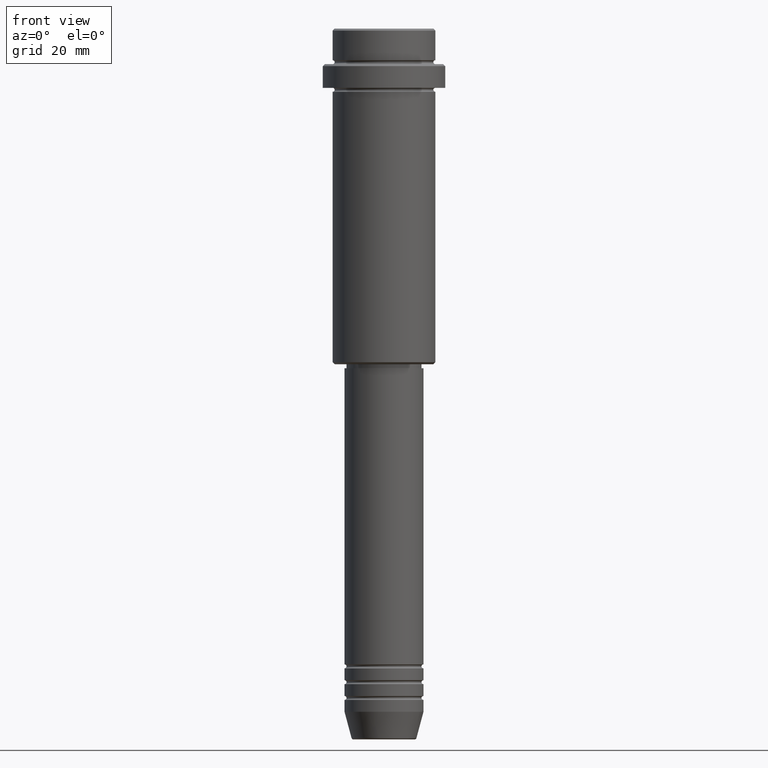
[diagram: clean part render]
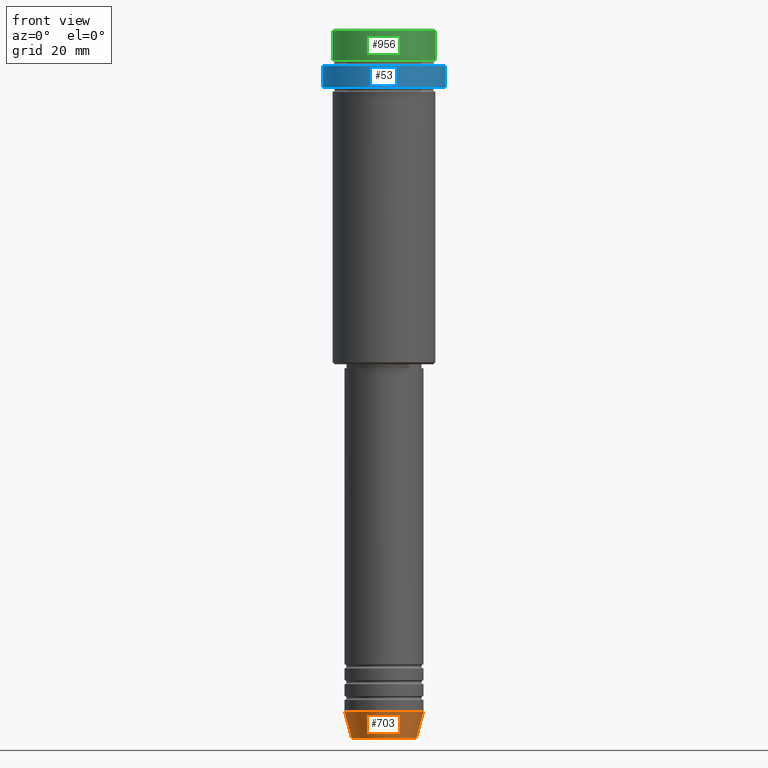
[diagram: same view with three faces highlighted in distinct colors, each labeled with its STEP entity id]
A machine part, front view with three faces highlighted in distinct colors.
Their STEP definitions:

[orange] entity #703 — the highlighted conical surface has half-angle 15 deg.
#15 = DIRECTION ( 'NONE',  ( 1.000000000000000000, 0.000000000000000000, 0.000000000000000000 ) ) ;
#54 = DIRECTION ( 'NONE',  ( 1.000000000000000000, 0.000000000000000000, 0.000000000000000000 ) ) ;
#121 = CARTESIAN_POINT ( 'NONE',  ( 0.000000000000000000, 0.000000000000000000, -179.6294095225512422 ) ) ;
#128 = DIRECTION ( 'NONE',  ( -0.2588190451025214611, 3.169619151431774186E-17, 0.9659258262890679791 ) ) ;
#146 = VERTEX_POINT ( 'NONE', #865 ) ;
#170 = CARTESIAN_POINT ( 'NONE',  ( 8.223655072137189492, 0.000000000000000000, -179.6294095225512422 ) ) ;
#176 = VECTOR ( 'NONE', #128, 1000.000000000000114 ) ;
#190 = LINE ( 'NONE', #313, #826 ) ;
#229 = AXIS2_PLACEMENT_3D ( 'NONE', #121, #809, #15 ) ;
#265 = CARTESIAN_POINT ( 'NONE',  ( -8.223655072137189492, 1.115877042642911856E-15, -179.6294095225512422 ) ) ;
#313 = CARTESIAN_POINT ( 'NONE',  ( 10.00000000000000000, 0.000000000000000000, -173.0000000000000000 ) ) ;
#320 = CARTESIAN_POINT ( 'NONE',  ( -10.00000000000000000, 1.224646799147353256E-15, -173.0000000000000000 ) ) ;
#347 = VERTEX_POINT ( 'NONE', #170 ) ;
#466 = VERTEX_POINT ( 'NONE', #1142 ) ;
#468 = DIRECTION ( 'NONE',  ( -0.000000000000000000, -0.000000000000000000, 1.000000000000000000 ) ) ;
#547 = EDGE_CURVE ( 'NONE', #649, #146, #908, .T. ) ;
#571 = CONICAL_SURFACE ( 'NONE', #1390, 10.00000000000000000, 0.2617993877991502405 ) ;
#597 = DIRECTION ( 'NONE',  ( -0.000000000000000000, -0.000000000000000000, 1.000000000000000000 ) ) ;
#614 = CIRCLE ( 'NONE', #799, 10.00000000000000000 ) ;
#627 = DIRECTION ( 'NONE',  ( 0.2588190451025214611, 0.000000000000000000, 0.9659258262890679791 ) ) ;
#649 = VERTEX_POINT ( 'NONE', #265 ) ;
#703 = ADVANCED_FACE ( 'NONE', ( #717 ), #571, .T. ) ;
#717 = FACE_OUTER_BOUND ( 'NONE', #1186, .T. ) ;
#799 = AXIS2_PLACEMENT_3D ( 'NONE', #1017, #468, #1354 ) ;
#809 = DIRECTION ( 'NONE',  ( -0.000000000000000000, -0.000000000000000000, 1.000000000000000000 ) ) ;
#814 = ORIENTED_EDGE ( 'NONE', *, *, #1311, .T. ) ;
#826 = VECTOR ( 'NONE', #627, 1000.000000000000114 ) ;
#853 = CIRCLE ( 'NONE', #229, 8.223655072137189492 ) ;
#865 = CARTESIAN_POINT ( 'NONE',  ( -10.00000000000000000, 1.224646799147353256E-15, -173.0000000000000000 ) ) ;
#908 = LINE ( 'NONE', #320, #176 ) ;
#920 = EDGE_CURVE ( 'NONE', #347, #466, #190, .T. ) ;
#1017 = CARTESIAN_POINT ( 'NONE',  ( 0.000000000000000000, 0.000000000000000000, -173.0000000000000000 ) ) ;
#1020 = EDGE_CURVE ( 'NONE', #146, #466, #614, .T. ) ;
#1102 = ORIENTED_EDGE ( 'NONE', *, *, #547, .F. ) ;
#1133 = CARTESIAN_POINT ( 'NONE',  ( 0.000000000000000000, 0.000000000000000000, -173.0000000000000000 ) ) ;
#1142 = CARTESIAN_POINT ( 'NONE',  ( 10.00000000000000000, 0.000000000000000000, -173.0000000000000000 ) ) ;
#1186 = EDGE_LOOP ( 'NONE', ( #1102, #814, #1207, #1357 ) ) ;
#1207 = ORIENTED_EDGE ( 'NONE', *, *, #920, .T. ) ;
#1311 = EDGE_CURVE ( 'NONE', #649, #347, #853, .T. ) ;
#1354 = DIRECTION ( 'NONE',  ( 1.000000000000000000, 0.000000000000000000, 0.000000000000000000 ) ) ;
#1357 = ORIENTED_EDGE ( 'NONE', *, *, #1020, .F. ) ;
#1390 = AXIS2_PLACEMENT_3D ( 'NONE', #1133, #597, #54 ) ;

[blue] entity #53 — the highlighted cylindrical surface (partial cylindrical patch) has radius 15.5 mm, axis along (-0, -0, 1).
#35 = VERTEX_POINT ( 'NONE', #113 ) ;
#53 = ADVANCED_FACE ( 'NONE', ( #1241 ), #1316, .T. ) ;
#62 = LINE ( 'NONE', #1039, #1413 ) ;
#88 = CARTESIAN_POINT ( 'NONE',  ( 15.50000000000000000, 0.000000000000000000, 0.000000000000000000 ) ) ;
#105 = AXIS2_PLACEMENT_3D ( 'NONE', #1120, #765, #992 ) ;
#113 = CARTESIAN_POINT ( 'NONE',  ( 15.50000000000000000, 0.000000000000000000, -15.00000000000000000 ) ) ;
#141 = CARTESIAN_POINT ( 'NONE',  ( 0.000000000000000000, 0.000000000000000000, 0.000000000000000000 ) ) ;
#208 = DIRECTION ( 'NONE',  ( 1.000000000000000000, 0.000000000000000000, 0.000000000000000000 ) ) ;
#210 = EDGE_CURVE ( 'NONE', #1286, #1210, #1236, .T. ) ;
#216 = VERTEX_POINT ( 'NONE', #1292 ) ;
#244 = EDGE_CURVE ( 'NONE', #216, #35, #312, .T. ) ;
#264 = ORIENTED_EDGE ( 'NONE', *, *, #244, .T. ) ;
#275 = CARTESIAN_POINT ( 'NONE',  ( -15.50000000000000000, 1.898202538678397557E-15, -9.500000000000012434 ) ) ;
#299 = ORIENTED_EDGE ( 'NONE', *, *, #798, .T. ) ;
#307 = LINE ( 'NONE', #88, #1191 ) ;
#311 = DIRECTION ( 'NONE',  ( 0.000000000000000000, 0.000000000000000000, -1.000000000000000000 ) ) ;
#312 = CIRCLE ( 'NONE', #105, 15.50000000000000000 ) ;
#402 = EDGE_CURVE ( 'NONE', #216, #1210, #62, .T. ) ;
#418 = CARTESIAN_POINT ( 'NONE',  ( 0.000000000000000000, 0.000000000000000000, -9.500000000000012434 ) ) ;
#456 = AXIS2_PLACEMENT_3D ( 'NONE', #141, #669, #581 ) ;
#581 = DIRECTION ( 'NONE',  ( 1.000000000000000000, 0.000000000000000000, 0.000000000000000000 ) ) ;
#669 = DIRECTION ( 'NONE',  ( -0.000000000000000000, -0.000000000000000000, 1.000000000000000000 ) ) ;
#675 = EDGE_LOOP ( 'NONE', ( #1097, #264, #299, #1109 ) ) ;
#765 = DIRECTION ( 'NONE',  ( -0.000000000000000000, -0.000000000000000000, 1.000000000000000000 ) ) ;
#798 = EDGE_CURVE ( 'NONE', #35, #1286, #307, .T. ) ;
#992 = DIRECTION ( 'NONE',  ( 1.000000000000000000, 0.000000000000000000, 0.000000000000000000 ) ) ;
#1039 = CARTESIAN_POINT ( 'NONE',  ( -15.50000000000000000, 1.898202538678397557E-15, 0.000000000000000000 ) ) ;
#1047 = AXIS2_PLACEMENT_3D ( 'NONE', #418, #311, #208 ) ;
#1097 = ORIENTED_EDGE ( 'NONE', *, *, #402, .F. ) ;
#1109 = ORIENTED_EDGE ( 'NONE', *, *, #210, .T. ) ;
#1120 = CARTESIAN_POINT ( 'NONE',  ( 0.000000000000000000, 0.000000000000000000, -15.00000000000000000 ) ) ;
#1191 = VECTOR ( 'NONE', #1268, 1000.000000000000000 ) ;
#1210 = VERTEX_POINT ( 'NONE', #275 ) ;
#1236 = CIRCLE ( 'NONE', #1047, 15.50000000000000000 ) ;
#1241 = FACE_OUTER_BOUND ( 'NONE', #675, .T. ) ;
#1264 = DIRECTION ( 'NONE',  ( -0.000000000000000000, -0.000000000000000000, 1.000000000000000000 ) ) ;
#1268 = DIRECTION ( 'NONE',  ( -0.000000000000000000, -0.000000000000000000, 1.000000000000000000 ) ) ;
#1286 = VERTEX_POINT ( 'NONE', #1335 ) ;
#1292 = CARTESIAN_POINT ( 'NONE',  ( -15.50000000000000000, 1.898202538678397557E-15, -15.00000000000000000 ) ) ;
#1316 = CYLINDRICAL_SURFACE ( 'NONE', #456, 15.50000000000000000 ) ;
#1335 = CARTESIAN_POINT ( 'NONE',  ( 15.50000000000000000, 0.000000000000000000, -9.500000000000012434 ) ) ;
#1413 = VECTOR ( 'NONE', #1264, 1000.000000000000000 ) ;

[green] entity #956 — the highlighted cylindrical surface (partial cylindrical patch) has radius 13 mm, axis along (-0, -0, 1).
#14 = VECTOR ( 'NONE', #971, 1000.000000000000000 ) ;
#36 = EDGE_CURVE ( 'NONE', #477, #1194, #794, .T. ) ;
#135 = EDGE_CURVE ( 'NONE', #916, #1194, #217, .T. ) ;
#136 = DIRECTION ( 'NONE',  ( -0.000000000000000000, -0.000000000000000000, 1.000000000000000000 ) ) ;
#140 = ORIENTED_EDGE ( 'NONE', *, *, #668, .T. ) ;
#150 = AXIS2_PLACEMENT_3D ( 'NONE', #471, #235, #577 ) ;
#182 = CARTESIAN_POINT ( 'NONE',  ( 12.99999999999999822, 0.000000000000000000, -7.999999999999998224 ) ) ;
#217 = LINE ( 'NONE', #1407, #14 ) ;
#235 = DIRECTION ( 'NONE',  ( 0.000000000000000000, 0.000000000000000000, -1.000000000000000000 ) ) ;
#295 = CARTESIAN_POINT ( 'NONE',  ( -12.99999999999999822, 1.592040838891558898E-15, -0.5000000000000038858 ) ) ;
#298 = FACE_OUTER_BOUND ( 'NONE', #596, .T. ) ;
#308 = CARTESIAN_POINT ( 'NONE',  ( 12.99999999999999822, 0.000000000000000000, -0.5000000000000038858 ) ) ;
#317 = AXIS2_PLACEMENT_3D ( 'NONE', #528, #867, #1056 ) ;
#471 = CARTESIAN_POINT ( 'NONE',  ( 0.000000000000000000, 0.000000000000000000, -0.5000000000000038858 ) ) ;
#477 = VERTEX_POINT ( 'NONE', #308 ) ;
#528 = CARTESIAN_POINT ( 'NONE',  ( 0.000000000000000000, 0.000000000000000000, 0.000000000000000000 ) ) ;
#577 = DIRECTION ( 'NONE',  ( 1.000000000000000000, 0.000000000000000000, 0.000000000000000000 ) ) ;
#596 = EDGE_LOOP ( 'NONE', ( #962, #1037, #140, #932 ) ) ;
#635 = CIRCLE ( 'NONE', #1008, 12.99999999999999822 ) ;
#646 = CARTESIAN_POINT ( 'NONE',  ( -12.99999999999999822, 1.592040838891558898E-15, -7.999999999999998224 ) ) ;
#668 = EDGE_CURVE ( 'NONE', #861, #477, #803, .T. ) ;
#685 = DIRECTION ( 'NONE',  ( 1.000000000000000000, 0.000000000000000000, 0.000000000000000000 ) ) ;
#794 = CIRCLE ( 'NONE', #150, 12.99999999999999822 ) ;
#803 = LINE ( 'NONE', #1336, #1260 ) ;
#861 = VERTEX_POINT ( 'NONE', #182 ) ;
#867 = DIRECTION ( 'NONE',  ( -0.000000000000000000, -0.000000000000000000, 1.000000000000000000 ) ) ;
#916 = VERTEX_POINT ( 'NONE', #646 ) ;
#932 = ORIENTED_EDGE ( 'NONE', *, *, #36, .T. ) ;
#956 = ADVANCED_FACE ( 'NONE', ( #298 ), #1397, .T. ) ;
#962 = ORIENTED_EDGE ( 'NONE', *, *, #135, .F. ) ;
#971 = DIRECTION ( 'NONE',  ( -0.000000000000000000, -0.000000000000000000, 1.000000000000000000 ) ) ;
#1008 = AXIS2_PLACEMENT_3D ( 'NONE', #1009, #1233, #685 ) ;
#1009 = CARTESIAN_POINT ( 'NONE',  ( 0.000000000000000000, 0.000000000000000000, -7.999999999999998224 ) ) ;
#1037 = ORIENTED_EDGE ( 'NONE', *, *, #1352, .T. ) ;
#1056 = DIRECTION ( 'NONE',  ( 1.000000000000000000, 0.000000000000000000, 0.000000000000000000 ) ) ;
#1194 = VERTEX_POINT ( 'NONE', #295 ) ;
#1233 = DIRECTION ( 'NONE',  ( -0.000000000000000000, -0.000000000000000000, 1.000000000000000000 ) ) ;
#1260 = VECTOR ( 'NONE', #136, 1000.000000000000000 ) ;
#1336 = CARTESIAN_POINT ( 'NONE',  ( 12.99999999999999822, 0.000000000000000000, 0.000000000000000000 ) ) ;
#1352 = EDGE_CURVE ( 'NONE', #916, #861, #635, .T. ) ;
#1397 = CYLINDRICAL_SURFACE ( 'NONE', #317, 12.99999999999999822 ) ;
#1407 = CARTESIAN_POINT ( 'NONE',  ( -12.99999999999999822, 1.592040838891558898E-15, 0.000000000000000000 ) ) ;